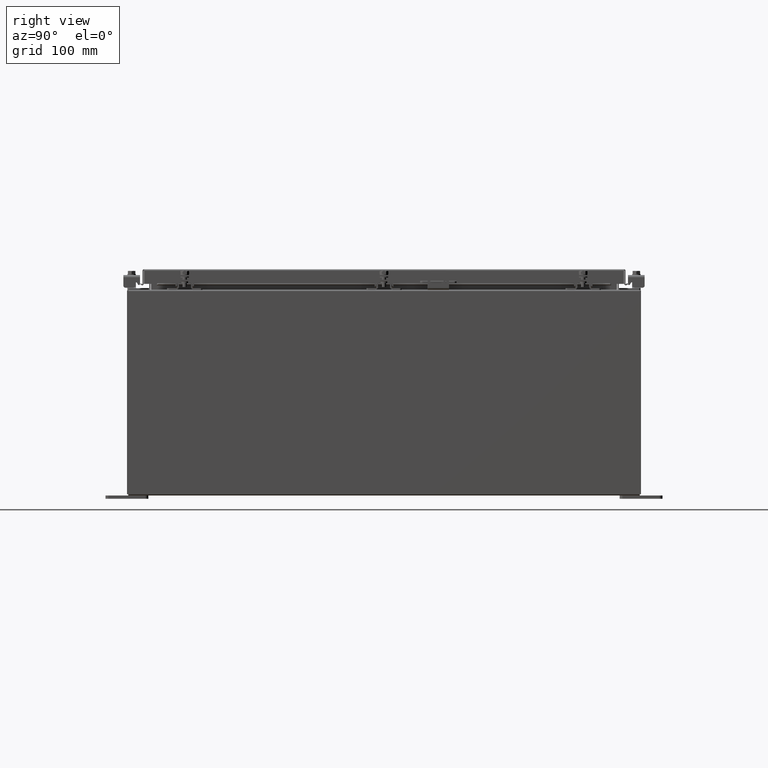
[diagram: clean part render]
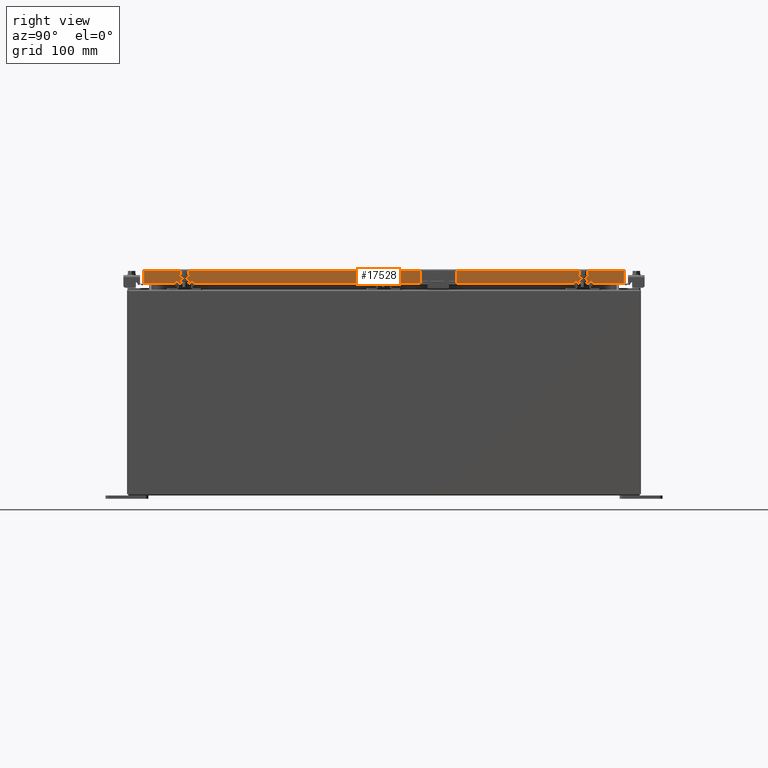
[diagram: same view with one face highlighted and labeled with its STEP entity id]
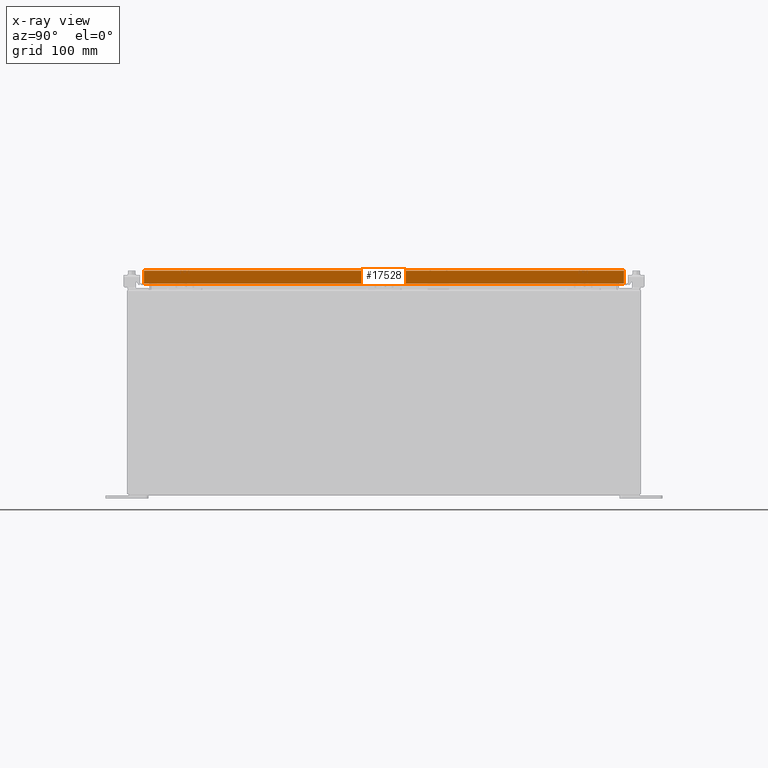
[diagram: x-ray of the same camera — body ghosted, the highlighted face saturated]
A machine part, right view. The second image highlights one B-rep face of the part: STEP entity #17528.
The next image is the same camera in x-ray: the body ghosted, the highlighted face saturated — about 0% of this face is hidden behind the body in this view.
In plain terms, the highlighted planar face has unit normal (1, 0, 0).
Its self-contained STEP definition (entity closure, byte-faithful):
#519 = CARTESIAN_POINT ( 'NONE',  ( 11.07799999999999900, -14.00515786437626900, -0.07470000000000015500 ) ) ;
#2385 = CARTESIAN_POINT ( 'NONE',  ( 11.07799999999999400, 13.25515786437626500, -0.8500000000000020900 ) ) ;
#2599 = VECTOR ( 'NONE', #30153, 39.37007874015748100 ) ;
#2778 = LINE ( 'NONE', #519, #27030 ) ;
#3699 = VERTEX_POINT ( 'NONE', #11773 ) ;
#4263 = CARTESIAN_POINT ( 'NONE',  ( 11.07799999999999900, 14.00515786437626900, 1.289432253009532300E-013 ) ) ;
#4469 = ORIENTED_EDGE ( 'NONE', *, *, #15737, .T. ) ;
#4474 = EDGE_CURVE ( 'NONE', #25874, #7281, #32024, .T. ) ;
#4976 = DIRECTION ( 'NONE',  ( 1.000000000000000000, 0.0000000000000000000, 2.818880942772360100E-015 ) ) ;
#5165 = EDGE_CURVE ( 'NONE', #7281, #5876, #34253, .T. ) ;
#5876 = VERTEX_POINT ( 'NONE', #34485 ) ;
#6675 = LINE ( 'NONE', #4263, #14487 ) ;
#7233 = DIRECTION ( 'NONE',  ( -2.818880942772360100E-015, -6.982962677686265900E-015, 1.000000000000000000 ) ) ;
#7281 = VERTEX_POINT ( 'NONE', #21654 ) ;
#7484 = ORIENTED_EDGE ( 'NONE', *, *, #25880, .T. ) ;
#8327 = DIRECTION ( 'NONE',  ( 0.0000000000000000000, -1.000000000000000000, 0.0000000000000000000 ) ) ;
#8694 = VECTOR ( 'NONE', #30174, 39.37007874015748100 ) ;
#8894 = ORIENTED_EDGE ( 'NONE', *, *, #4474, .F. ) ;
#9302 = DIRECTION ( 'NONE',  ( -2.818880942772360100E-015, -6.982962677686265900E-015, 1.000000000000000000 ) ) ;
#11773 = CARTESIAN_POINT ( 'NONE',  ( 11.07799999999999900, 14.00515786437626500, -0.08770000000000026400 ) ) ;
#13166 = EDGE_CURVE ( 'NONE', #30470, #25874, #33769, .T. ) ;
#13466 = CARTESIAN_POINT ( 'NONE',  ( 11.07800000000000300, -14.09399999999999900, -0.8499999999999999800 ) ) ;
#13700 = DIRECTION ( 'NONE',  ( 0.0000000000000000000, -1.000000000000000000, 0.0000000000000000000 ) ) ;
#14487 = VECTOR ( 'NONE', #7233, 39.37007874015748100 ) ;
#15303 = AXIS2_PLACEMENT_3D ( 'NONE', #34159, #4976, #25418 ) ;
#15369 = CARTESIAN_POINT ( 'NONE',  ( 11.07799999999999900, -14.00515786437626900, -0.08770000000000026400 ) ) ;
#15737 = EDGE_CURVE ( 'NONE', #30470, #3699, #6675, .T. ) ;
#16152 = FACE_OUTER_BOUND ( 'NONE', #36154, .T. ) ;
#17528 = ADVANCED_FACE ( 'NONE', ( #16152 ), #28217, .T. ) ;
#21025 = VECTOR ( 'NONE', #8327, 39.37007874015748100 ) ;
#21654 = CARTESIAN_POINT ( 'NONE',  ( 11.07799999999999400, -13.25515786437626400, -0.8500000000000020900 ) ) ;
#24058 = ORIENTED_EDGE ( 'NONE', *, *, #5165, .F. ) ;
#24297 = CARTESIAN_POINT ( 'NONE',  ( 11.07799999999999400, 13.25515786437627200, -0.8500000000000020900 ) ) ;
#24903 = EDGE_CURVE ( 'NONE', #5876, #27718, #2778, .T. ) ;
#25418 = DIRECTION ( 'NONE',  ( 2.818880942772360100E-015, 0.0000000000000000000, -1.000000000000000000 ) ) ;
#25545 = CARTESIAN_POINT ( 'NONE',  ( 11.07799999999999900, 0.0000000000000000000, -0.08770000000000026400 ) ) ;
#25874 = VERTEX_POINT ( 'NONE', #2385 ) ;
#25880 = EDGE_CURVE ( 'NONE', #3699, #27718, #28805, .T. ) ;
#27030 = VECTOR ( 'NONE', #9302, 39.37007874015748100 ) ;
#27718 = VERTEX_POINT ( 'NONE', #15369 ) ;
#28217 = PLANE ( 'NONE',  #15303 ) ;
#28342 = CARTESIAN_POINT ( 'NONE',  ( 11.07800000000000300, -14.09399999999999900, -0.8499999999999999800 ) ) ;
#28805 = LINE ( 'NONE', #25545, #21025 ) ;
#29090 = ORIENTED_EDGE ( 'NONE', *, *, #13166, .F. ) ;
#30153 = DIRECTION ( 'NONE',  ( 0.0000000000000000000, -1.000000000000000000, 0.0000000000000000000 ) ) ;
#30174 = DIRECTION ( 'NONE',  ( 0.0000000000000000000, -1.000000000000000000, 0.0000000000000000000 ) ) ;
#30470 = VERTEX_POINT ( 'NONE', #34374 ) ;
#31480 = ORIENTED_EDGE ( 'NONE', *, *, #24903, .F. ) ;
#32024 = LINE ( 'NONE', #24297, #8694 ) ;
#33337 = VECTOR ( 'NONE', #13700, 39.37007874015748100 ) ;
#33769 = LINE ( 'NONE', #13466, #2599 ) ;
#34159 = CARTESIAN_POINT ( 'NONE',  ( 11.07799999999999900, 0.0000000000000000000, 3.059669752903974500E-014 ) ) ;
#34253 = LINE ( 'NONE', #28342, #33337 ) ;
#34374 = CARTESIAN_POINT ( 'NONE',  ( 11.07800000000000300, 14.00515786437627200, -0.8499999999999999800 ) ) ;
#34485 = CARTESIAN_POINT ( 'NONE',  ( 11.07800000000000300, -14.00515786437626400, -0.8499999999999999800 ) ) ;
#36154 = EDGE_LOOP ( 'NONE', ( #31480, #24058, #8894, #29090, #4469, #7484 ) ) ;